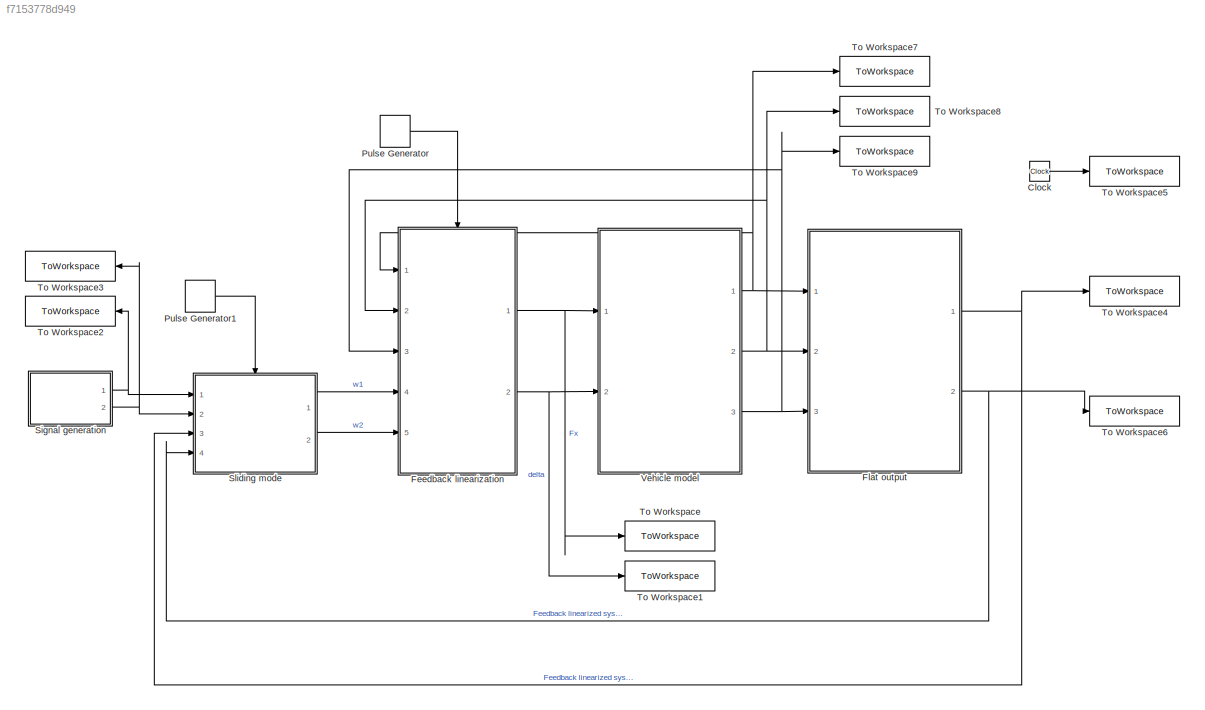
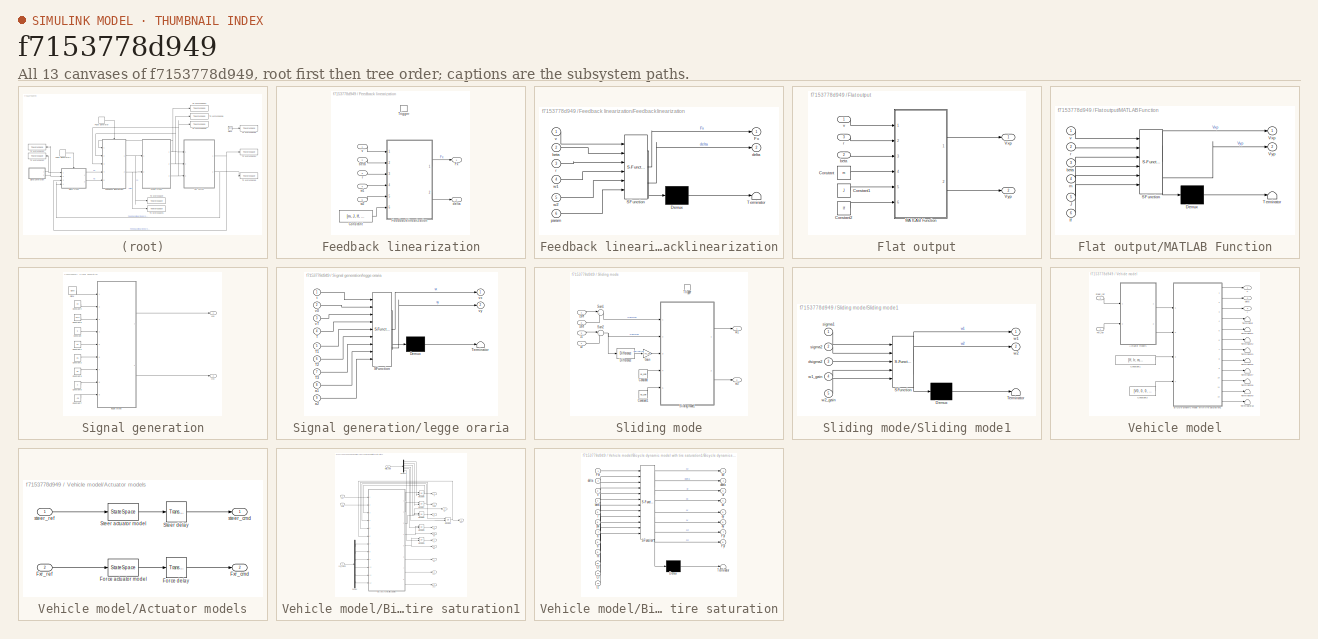
[diagram: thumbnail index - all 13 canvases of the model, root first then tree order]
MODEL slx_f7153778d949
KIND model
CONFIG AbsTol = auto
CONFIG EnableMultiTasking = off
CONFIG FixedStep = 1e-6
CONFIG MaxStep = auto
CONFIG MinStep = auto
CONFIG PostLoadFcn = clear all;\n\nlf  = 0.1368;\nlr  = 0.1232;\nm  = 1.9;\nmu = 0.385;\nCf = 50.13;\nCr = 122.05;\nJ = 0.029;\n\nV0 = 1;\n\nTs_cont = 0.001;\nw1_gain = 20;\nw2_gain = 100;
CONFIG RelTol = 1e-3
CONFIG SampleTimeConstraint = Unconstrained
CONFIG SolverName = VariableStepAuto
CONFIG StartTime = 0.0
CONFIG StopTime = 5
BLOCK [Clock] Clock
BLOCK [SubSystem] Feedback linearization
  Ports = [5, 2, 0, 1]
  RequestExecContextInheritance = off
  TreatAsAtomicUnit = on
BLOCK [Constant] Feedback linearization/Constant
  Value = [m, J, lf, lr, Cf, Cr]
BLOCK [SubSystem] Feedback linearization/Feedbacklinearization
  ErrorFcn = Stateflow.Translate.translate
  PermitHierarchicalResolution = ExplicitOnly
  Ports = [6, 2]
  RequestExecContextInheritance = off
  SFBlockType = MATLAB Function
  TreatAsAtomicUnit = on
BLOCK [Demux] Feedback linearization/Feedbacklinearization/ Demux 
  Outputs = 1
  Ports = [1, 1]
BLOCK [S-Function] Feedback linearization/Feedbacklinearization/ SFunction 
  EnableBusSupport = on
  FunctionName = sf_sfun
  PortCounts = [6 3]
  Ports = [6, 3]
  SFcnIsStateOwnerBlock = off
  SFunctionDeploymentMode = off
  Tag = Stateflow S-Function 2
BLOCK [Terminator] Feedback linearization/Feedbacklinearization/ Terminator 
BLOCK [Outport] Feedback linearization/Feedbacklinearization/Fx
BLOCK [Inport] Feedback linearization/Feedbacklinearization/beta
  Port = 2
BLOCK [Outport] Feedback linearization/Feedbacklinearization/delta
  Port = 2
BLOCK [Inport] Feedback linearization/Feedbacklinearization/param
  Port = 6
BLOCK [Inport] Feedback linearization/Feedbacklinearization/r
  Port = 3
BLOCK [Inport] Feedback linearization/Feedbacklinearization/v
BLOCK [Inport] Feedback linearization/Feedbacklinearization/w1
  Port = 4
BLOCK [Inport] Feedback linearization/Feedbacklinearization/w2
  Port = 5
BLOCK [Outport] Feedback linearization/Fx
BLOCK [TriggerPort] Feedback linearization/Trigger
  Ports = []
  StatesWhenEnabling = held
  VariantControl = (inherit)
BLOCK [Inport] Feedback linearization/beta
  Port = 2
BLOCK [Outport] Feedback linearization/delta
  Port = 2
BLOCK [Inport] Feedback linearization/r
  Port = 3
BLOCK [Inport] Feedback linearization/v
BLOCK [Inport] Feedback linearization/w1
  Port = 4
BLOCK [Inport] Feedback linearization/w2
  Port = 5
BLOCK [SubSystem] Flat output
  Ports = [3, 2]
  RequestExecContextInheritance = off
BLOCK [Constant] Flat output/Constant
  Value = m
BLOCK [Constant] Flat output/Constant1
  Value = J
BLOCK [Constant] Flat output/Constant2
  Value = lf
BLOCK [SubSystem] Flat output/MATLAB Function
  ErrorFcn = Stateflow.Translate.translate
  PermitHierarchicalResolution = ExplicitOnly
  Ports = [6, 2]
  RequestExecContextInheritance = off
  SFBlockType = MATLAB Function
  TreatAsAtomicUnit = on
BLOCK [Demux] Flat output/MATLAB Function/ Demux 
  Outputs = 1
  Ports = [1, 1]
BLOCK [S-Function] Flat output/MATLAB Function/ SFunction 
  EnableBusSupport = on
  FunctionName = sf_sfun
  PortCounts = [6 3]
  Ports = [6, 3]
  SFcnIsStateOwnerBlock = off
  SFunctionDeploymentMode = off
  Tag = Stateflow S-Function 5
BLOCK [Terminator] Flat output/MATLAB Function/ Terminator 
BLOCK [Inport] Flat output/MATLAB Function/J
  Port = 5
BLOCK [Outport] Flat output/MATLAB Function/Vxp
BLOCK [Outport] Flat output/MATLAB Function/Vyp
  Port = 2
BLOCK [Inport] Flat output/MATLAB Function/beta
  Port = 3
BLOCK [Inport] Flat output/MATLAB Function/lf
  Port = 6
BLOCK [Inport] Flat output/MATLAB Function/m
  Port = 4
BLOCK [Inport] Flat output/MATLAB Function/r
  Port = 2
BLOCK [Inport] Flat output/MATLAB Function/v
BLOCK [Outport] Flat output/Vxp
BLOCK [Outport] Flat output/Vyp
  Port = 2
BLOCK [Inport] Flat output/beta
  Port = 2
BLOCK [Inport] Flat output/r
  Port = 3
BLOCK [Inport] Flat output/v
BLOCK [DiscretePulseGenerator] Pulse Generator
  Period = Ts_cont
  Ports = [0, 1]
  PulseType = Time based
  PulseWidth = 50
BLOCK [DiscretePulseGenerator] Pulse Generator1
  Period = Ts_cont
  Ports = [0, 1]
  PulseType = Time based
  PulseWidth = 50
BLOCK [SubSystem] Signal generation
  Ports = [0, 2]
  RequestExecContextInheritance = off
BLOCK [Clock] Signal generation/Clock
BLOCK [Constant] Signal generation/Constant
  Value = 5
BLOCK [Constant] Signal generation/Constant1
  Value = 1.5
BLOCK [Constant] Signal generation/Constant2
  Value = 2.5
BLOCK [Constant] Signal generation/Constant3
  Value = 3.5
BLOCK [Constant] Signal generation/Constant4
  Value = V0
BLOCK [Constant] Signal generation/Constant5
  Value = V0+2
BLOCK [Constant] Signal generation/Constant6
  Value = 2
BLOCK [Constant] Signal generation/Constant7
  Value = -2.5
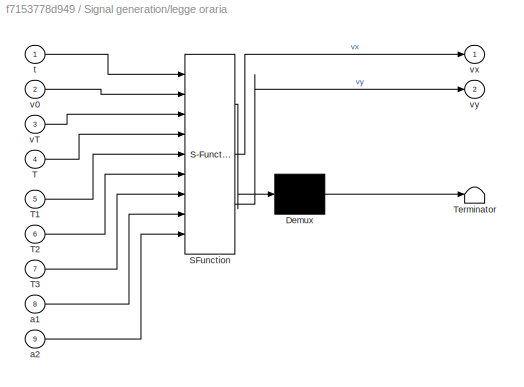
BLOCK [SubSystem] Signal generation/legge oraria
  ErrorFcn = Stateflow.Translate.translate
  PermitHierarchicalResolution = ExplicitOnly
  Ports = [9, 2]
  RequestExecContextInheritance = off
  SFBlockType = MATLAB Function
  TreatAsAtomicUnit = on
BLOCK [Demux] Signal generation/legge oraria/ Demux 
  Outputs = 1
  Ports = [1, 1]
BLOCK [S-Function] Signal generation/legge oraria/ SFunction 
  EnableBusSupport = on
  FunctionName = sf_sfun
  PortCounts = [9 3]
  Ports = [9, 3]
  SFcnIsStateOwnerBlock = off
  SFunctionDeploymentMode = off
  Tag = Stateflow S-Function 3
BLOCK [Terminator] Signal generation/legge oraria/ Terminator 
BLOCK [Inport] Signal generation/legge oraria/T
  Port = 4
BLOCK [Inport] Signal generation/legge oraria/T1
  Port = 5
BLOCK [Inport] Signal generation/legge oraria/T2
  Port = 6
BLOCK [Inport] Signal generation/legge oraria/T3
  Port = 7
BLOCK [Inport] Signal generation/legge oraria/a1
  Port = 8
BLOCK [Inport] Signal generation/legge oraria/a2
  Port = 9
BLOCK [Inport] Signal generation/legge oraria/t
BLOCK [Inport] Signal generation/legge oraria/v0
  Port = 2
BLOCK [Inport] Signal generation/legge oraria/vT
  Port = 3
BLOCK [Outport] Signal generation/legge oraria/vx
BLOCK [Outport] Signal generation/legge oraria/vy
  Port = 2
BLOCK [Outport] Signal generation/vxp
BLOCK [Outport] Signal generation/vyp
  Port = 2
BLOCK [SubSystem] Sliding mode
  Ports = [4, 2, 0, 1]
  RequestExecContextInheritance = off
  TreatAsAtomicUnit = on
BLOCK [Constant] Sliding mode/Constant
  Value = w1_gain
BLOCK [Constant] Sliding mode/Constant1
  Value = w2_gain
BLOCK [Reference] Sliding mode/Difference  REF=simulink/Discrete/Difference
  Ports = [1, 1]
  SourceBlock = simulink/Discrete/Difference
  SourceProductBaseCode = SL
  SourceType = Difference
BLOCK [Gain] Sliding mode/Gain
  Gain = 1/Ts_SM
BLOCK [SubSystem] Sliding mode/Sliding mode1
  ErrorFcn = Stateflow.Translate.translate
  PermitHierarchicalResolution = ExplicitOnly
  Ports = [5, 2]
  RequestExecContextInheritance = off
  SFBlockType = MATLAB Function
  TreatAsAtomicUnit = on
BLOCK [Demux] Sliding mode/Sliding mode1/ Demux 
  Outputs = 1
  Ports = [1, 1]
BLOCK [S-Function] Sliding mode/Sliding mode1/ SFunction 
  EnableBusSupport = on
  FunctionName = sf_sfun
  PortCounts = [5 3]
  Ports = [5, 3]
  SFcnIsStateOwnerBlock = off
  SFunctionDeploymentMode = off
  Tag = Stateflow S-Function 4
BLOCK [Terminator] Sliding mode/Sliding mode1/ Terminator 
BLOCK [Inport] Sliding mode/Sliding mode1/dsigma2
  Port = 3
BLOCK [Inport] Sliding mode/Sliding mode1/sigma1
BLOCK [Inport] Sliding mode/Sliding mode1/sigma2
  Port = 2
BLOCK [Outport] Sliding mode/Sliding mode1/w1
BLOCK [Inport] Sliding mode/Sliding mode1/w1_gain
  Port = 4
BLOCK [Outport] Sliding mode/Sliding mode1/w2
  Port = 2
BLOCK [Inport] Sliding mode/Sliding mode1/w2_gain
  Port = 5
BLOCK [Sum] Sliding mode/Sum1
  Inputs = |+-
  Ports = [2, 1]
BLOCK [Sum] Sliding mode/Sum2
  Inputs = |+-
  Ports = [2, 1]
BLOCK [TriggerPort] Sliding mode/Trigger
  Ports = []
  StatesWhenEnabling = held
  VariantControl = (inherit)
BLOCK [Outport] Sliding mode/w1
BLOCK [Outport] Sliding mode/w2
  Port = 2
BLOCK [Inport] Sliding mode/z1
  Port = 3
BLOCK [Inport] Sliding mode/z1ref
BLOCK [Inport] Sliding mode/z2
  Port = 4
BLOCK [Inport] Sliding mode/z2ref
  Port = 2
BLOCK [ToWorkspace] To Workspace
  FixptAsFi = on
  MaxDataPoints = inf
  Ports = [1]
  SampleTime = 0.001
  Save2DSignal = 2-D array (concatenate along first dimension)
  VariableName = Fx
BLOCK [ToWorkspace] To Workspace1
  FixptAsFi = on
  MaxDataPoints = inf
  Ports = [1]
  SampleTime = 0.001
  Save2DSignal = 2-D array (concatenate along first dimension)
  VariableName = delta
BLOCK [ToWorkspace] To Workspace2
  FixptAsFi = on
  MaxDataPoints = inf
  Ports = [1]
  SampleTime = 0.001
  Save2DSignal = 2-D array (concatenate along first dimension)
  VariableName = Vxp_ref
BLOCK [ToWorkspace] To Workspace3
  FixptAsFi = on
  MaxDataPoints = inf
  Ports = [1]
  SampleTime = 0.001
  Save2DSignal = 2-D array (concatenate along first dimension)
  VariableName = Vyp_ref
BLOCK [ToWorkspace] To Workspace4
  FixptAsFi = on
  MaxDataPoints = inf
  Ports = [1]
  SampleTime = 0.001
  Save2DSignal = 2-D array (concatenate along first dimension)
  VariableName = Vxp
BLOCK [ToWorkspace] To Workspace5
  FixptAsFi = on
  MaxDataPoints = inf
  Ports = [1]
  SampleTime = 0.001
  Save2DSignal = 2-D array (concatenate along first dimension)
  VariableName = t
BLOCK [ToWorkspace] To Workspace6
  FixptAsFi = on
  MaxDataPoints = inf
  Ports = [1]
  SampleTime = 0.001
  Save2DSignal = 2-D array (concatenate along first dimension)
  VariableName = Vyp
BLOCK [ToWorkspace] To Workspace7
  FixptAsFi = on
  MaxDataPoints = inf
  Ports = [1]
  SampleTime = 0.001
  Save2DSignal = 2-D array (concatenate along first dimension)
  VariableName = v
BLOCK [ToWorkspace] To Workspace8
  FixptAsFi = on
  MaxDataPoints = inf
  Ports = [1]
  SampleTime = 0.001
  Save2DSignal = 2-D array (concatenate along first dimension)
  VariableName = beta
BLOCK [ToWorkspace] To Workspace9
  FixptAsFi = on
  MaxDataPoints = inf
  Ports = [1]
  SampleTime = 0.001
  Save2DSignal = 2-D array (concatenate along first dimension)
  VariableName = r
BLOCK [SubSystem] Vehicle model
  Ports = [2, 3]
  RequestExecContextInheritance = off
BLOCK [SubSystem] Vehicle model/Actuator models
  Commented = through
  Ports = [2, 2]
  RequestExecContextInheritance = off
BLOCK [StateSpace] Vehicle model/Actuator models/Force actuator model
  A = [0, 1; -wn_force^2, -2*csi_force*wn_force]
  B = [0; mu_force*wn_force^2]
  C = [1, 0]
  D = 0
  InitialCondition = [force_initial, 0]
  Ports = [1, 1]
BLOCK [TransportDelay] Vehicle model/Actuator models/Force delay
  DelayTime = tau_force
  InitialOutput = force_initial
  Ports = [1, 1]
BLOCK [Outport] Vehicle model/Actuator models/Fxr_cmd
  Port = 2
BLOCK [Inport] Vehicle model/Actuator models/Fxr_ref
  Port = 2
BLOCK [StateSpace] Vehicle model/Actuator models/Steer actuator model
  A = [0, 1; -wn_steer^2, -2*csi_steer*wn_steer]
  B = [0; mu_steer*wn_steer^2]
  C = [1, 0]
  D = 0
  InitialCondition = [steer_initial, 0]
  Ports = [1, 1]
BLOCK [TransportDelay] Vehicle model/Actuator models/Steer delay
  DelayTime = tau_steer
  InitialOutput = steer_initial
  Ports = [1, 1]
BLOCK [Outport] Vehicle model/Actuator models/steer_cmd
BLOCK [Inport] Vehicle model/Actuator models/steer_ref
BLOCK [SubSystem] Vehicle model/Bicycle dynamic model with tire saturation1
  Ports = [4, 12]
  RequestExecContextInheritance = off
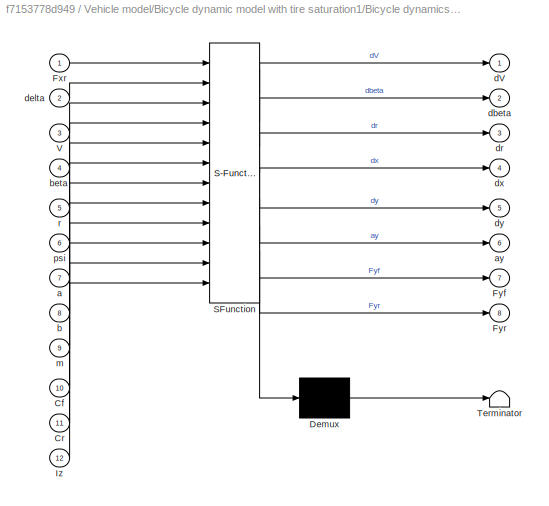
BLOCK [SubSystem] Vehicle model/Bicycle dynamic model with tire saturation1/Bicycle dynamics tire saturation
  ErrorFcn = Stateflow.Translate.translate
  PermitHierarchicalResolution = ExplicitOnly
  Ports = [12, 8]
  RequestExecContextInheritance = off
  SFBlockType = MATLAB Function
  TreatAsAtomicUnit = on
BLOCK [Demux] Vehicle model/Bicycle dynamic model with tire saturation1/Bicycle dynamics tire saturation/ Demux 
  Outputs = 1
  Ports = [1, 1]
BLOCK [S-Function] Vehicle model/Bicycle dynamic model with tire saturation1/Bicycle dynamics tire saturation/ SFunction 
  EnableBusSupport = on
  FunctionName = sf_sfun
  PortCounts = [12 9]
  Ports = [12, 9]
  SFcnIsStateOwnerBlock = off
  SFunctionDeploymentMode = off
  Tag = Stateflow S-Function 1
BLOCK [Terminator] Vehicle model/Bicycle dynamic model with tire saturation1/Bicycle dynamics tire saturation/ Terminator 
BLOCK [Inport] Vehicle model/Bicycle dynamic model with tire saturation1/Bicycle dynamics tire saturation/Cf
  Port = 10
BLOCK [Inport] Vehicle model/Bicycle dynamic model with tire saturation1/Bicycle dynamics tire saturation/Cr
  Port = 11
BLOCK [Inport] Vehicle model/Bicycle dynamic model with tire saturation1/Bicycle dynamics tire saturation/Fxr
BLOCK [Outport] Vehicle model/Bicycle dynamic model with tire saturation1/Bicycle dynamics tire saturation/Fyf
  Port = 7
BLOCK [Outport] Vehicle model/Bicycle dynamic model with tire saturation1/Bicycle dynamics tire saturation/Fyr
  Port = 8
BLOCK [Inport] Vehicle model/Bicycle dynamic model with tire saturation1/Bicycle dynamics tire saturation/Iz
  Port = 12
BLOCK [Inport] Vehicle model/Bicycle dynamic model with tire saturation1/Bicycle dynamics tire saturation/V
  Port = 3
BLOCK [Inport] Vehicle model/Bicycle dynamic model with tire saturation1/Bicycle dynamics tire saturation/a
  Port = 7
BLOCK [Outport] Vehicle model/Bicycle dynamic model with tire saturation1/Bicycle dynamics tire saturation/ay
  Port = 6
BLOCK [Inport] Vehicle model/Bicycle dynamic model with tire saturation1/Bicycle dynamics tire saturation/b
  Port = 8
BLOCK [Inport] Vehicle model/Bicycle dynamic model with tire saturation1/Bicycle dynamics tire saturation/beta
  Port = 4
BLOCK [Outport] Vehicle model/Bicycle dynamic model with tire saturation1/Bicycle dynamics tire saturation/dV
BLOCK [Outport] Vehicle model/Bicycle dynamic model with tire saturation1/Bicycle dynamics tire saturation/dbeta
  Port = 2
BLOCK [Inport] Vehicle model/Bicycle dynamic model with tire saturation1/Bicycle dynamics tire saturation/delta
  Port = 2
BLOCK [Outport] Vehicle model/Bicycle dynamic model with tire saturation1/Bicycle dynamics tire saturation/dr
  Port = 3
  VectorParamsAs1DForOutWhenUnconnected = off
BLOCK [Outport] Vehicle model/Bicycle dynamic model with tire saturation1/Bicycle dynamics tire saturation/dx
  Port = 4
BLOCK [Outport] Vehicle model/Bicycle dynamic model with tire saturation1/Bicycle dynamics tire saturation/dy
  Port = 5
BLOCK [Inport] Vehicle model/Bicycle dynamic model with tire saturation1/Bicycle dynamics tire saturation/m
  Port = 9
BLOCK [Inport] Vehicle model/Bicycle dynamic model with tire saturation1/Bicycle dynamics tire saturation/psi
  Port = 6
BLOCK [Inport] Vehicle model/Bicycle dynamic model with tire saturation1/Bicycle dynamics tire saturation/r
  Port = 5
BLOCK [Demux] Vehicle model/Bicycle dynamic model with tire saturation1/Demux
  Outputs = 6
  Ports = [1, 6]
BLOCK [Demux] Vehicle model/Bicycle dynamic model with tire saturation1/Demux2
  Outputs = 6
  Ports = [1, 6]
BLOCK [Inport] Vehicle model/Bicycle dynamic model with tire saturation1/Fxr
  Port = 2
BLOCK [Outport] Vehicle model/Bicycle dynamic model with tire saturation1/Fyf
  Port = 8
BLOCK [Outport] Vehicle model/Bicycle dynamic model with tire saturation1/Fyr
  Port = 9
BLOCK [Integrator] Vehicle model/Bicycle dynamic model with tire saturation1/Integrator
  InitialConditionSource = external
  Ports = [2, 1]
BLOCK [Integrator] Vehicle model/Bicycle dynamic model with tire saturation1/Integrator1
  InitialConditionSource = external
  Ports = [2, 1]
BLOCK [Integrator] Vehicle model/Bicycle dynamic model with tire saturation1/Integrator2
  InitialConditionSource = external
  Ports = [2, 1]
BLOCK [Integrator] Vehicle model/Bicycle dynamic model with tire saturation1/Integrator3
  InitialConditionSource = external
  Ports = [2, 1]
BLOCK [Integrator] Vehicle model/Bicycle dynamic model with tire saturation1/Integrator4
  InitialConditionSource = external
  Ports = [2, 1]
BLOCK [Integrator] Vehicle model/Bicycle dynamic model with tire saturation1/Integrator5
  InitialConditionSource = external
  Ports = [2, 1]
BLOCK [Outport] Vehicle model/Bicycle dynamic model with tire saturation1/V
BLOCK [Outport] Vehicle model/Bicycle dynamic model with tire saturation1/ay
  Port = 7
BLOCK [Outport] Vehicle model/Bicycle dynamic model with tire saturation1/beta
  Port = 2
BLOCK [Inport] Vehicle model/Bicycle dynamic model with tire saturation1/car_param
  Port = 3
BLOCK [Inport] Vehicle model/Bicycle dynamic model with tire saturation1/delta
BLOCK [Outport] Vehicle model/Bicycle dynamic model with tire saturation1/dr
  Port = 12
BLOCK [Outport] Vehicle model/Bicycle dynamic model with tire saturation1/dx
  Port = 10
BLOCK [Outport] Vehicle model/Bicycle dynamic model with tire saturation1/dy
  Port = 11
BLOCK [Inport] Vehicle model/Bicycle dynamic model with tire saturation1/initial_state 
  Port = 4
BLOCK [Outport] Vehicle model/Bicycle dynamic model with tire saturation1/psi
  Port = 6
BLOCK [Outport] Vehicle model/Bicycle dynamic model with tire saturation1/r
  Port = 3
BLOCK [Outport] Vehicle model/Bicycle dynamic model with tire saturation1/x
  Port = 4
BLOCK [Outport] Vehicle model/Bicycle dynamic model with tire saturation1/y
  Port = 5
BLOCK [Constant] Vehicle model/Constant1
  Value = [lf, lr, m, Cf, Cr, J]
BLOCK [Constant] Vehicle model/Constant3
  Value = [V0, 0, 0, 0, 0, 0]
BLOCK [Inport] Vehicle model/Fxr_ref
BLOCK [Terminator] Vehicle model/Terminator
BLOCK [Terminator] Vehicle model/Terminator1
BLOCK [Terminator] Vehicle model/Terminator10
BLOCK [Terminator] Vehicle model/Terminator2
BLOCK [Terminator] Vehicle model/Terminator3
BLOCK [Terminator] Vehicle model/Terminator6
BLOCK [Terminator] Vehicle model/Terminator7
BLOCK [Terminator] Vehicle model/Terminator8
BLOCK [Terminator] Vehicle model/Terminator9
BLOCK [Outport] Vehicle model/V
BLOCK [Outport] Vehicle model/beta
  Port = 2
BLOCK [Outport] Vehicle model/r
  Port = 3
BLOCK [Inport] Vehicle model/steer_ref
  Port = 2
LINE Clock:1 -> To Workspace5:1
LINE Feedback linearization/Constant:1 -> Feedback linearization/Feedbacklinearization:6
LINE Feedback linearization/Feedbacklinearization:1 -> Feedback linearization/Fx:1
LINE Feedback linearization/Feedbacklinearization:2 -> Feedback linearization/delta:1
LINE Feedback linearization/beta:1 -> Feedback linearization/Feedbacklinearization:2
LINE Feedback linearization/r:1 -> Feedback linearization/Feedbacklinearization:3
LINE Feedback linearization/v:1 -> Feedback linearization/Feedbacklinearization:1
LINE Feedback linearization/w1:1 -> Feedback linearization/Feedbacklinearization:4
LINE Feedback linearization/w2:1 -> Feedback linearization/Feedbacklinearization:5
NET Feedback linearization:1 -> To Workspace:1, Vehicle model:1
NET Feedback linearization:2 -> To Workspace1:1, Vehicle model:2
LINE Flat output/Constant1:1 -> Flat output/MATLAB Function:5
LINE Flat output/Constant2:1 -> Flat output/MATLAB Function:6
LINE Flat output/Constant:1 -> Flat output/MATLAB Function:4
LINE Flat output/MATLAB Function:1 -> Flat output/Vxp:1
LINE Flat output/MATLAB Function:2 -> Flat output/Vyp:1
LINE Flat output/beta:1 -> Flat output/MATLAB Function:3
LINE Flat output/r:1 -> Flat output/MATLAB Function:2
LINE Flat output/v:1 -> Flat output/MATLAB Function:1
NET Flat output:1 -> Sliding mode:3, To Workspace4:1
NET Flat output:2 -> Sliding mode:4, To Workspace6:1
LINE Pulse Generator1:1 -> Sliding mode:trigger
LINE Pulse Generator:1 -> Feedback linearization:trigger
LINE Signal generation/Clock:1 -> Signal generation/legge oraria:1
LINE Signal generation/Constant1:1 -> Signal generation/legge oraria:5
LINE Signal generation/Constant2:1 -> Signal generation/legge oraria:6
LINE Signal generation/Constant3:1 -> Signal generation/legge oraria:7
LINE Signal generation/Constant4:1 -> Signal generation/legge oraria:2
LINE Signal generation/Constant5:1 -> Signal generation/legge oraria:3
LINE Signal generation/Constant6:1 -> Signal generation/legge oraria:8
LINE Signal generation/Constant7:1 -> Signal generation/legge oraria:9
LINE Signal generation/Constant:1 -> Signal generation/legge oraria:4
LINE Signal generation/legge oraria:1 -> Signal generation/vxp:1
LINE Signal generation/legge oraria:2 -> Signal generation/vyp:1
NET Signal generation:1 -> Sliding mode:1, To Workspace2:1
NET Signal generation:2 -> Sliding mode:2, To Workspace3:1
LINE Sliding mode/Constant1:1 -> Sliding mode/Sliding mode1:5
LINE Sliding mode/Constant:1 -> Sliding mode/Sliding mode1:4
LINE Sliding mode/Difference:1 -> Sliding mode/Gain:1
LINE Sliding mode/Gain:1 -> Sliding mode/Sliding mode1:3
LINE Sliding mode/Sliding mode1:1 -> Sliding mode/w1:1
LINE Sliding mode/Sliding mode1:2 -> Sliding mode/w2:1
LINE Sliding mode/Sum1:1 -> Sliding mode/Sliding mode1:1
NET Sliding mode/Sum2:1 -> Sliding mode/Difference:1, Sliding mode/Sliding mode1:2
LINE Sliding mode/z1:1 -> Sliding mode/Sum2:1
LINE Sliding mode/z1ref:1 -> Sliding mode/Sum1:1
LINE Sliding mode/z2:1 -> Sliding mode/Sum2:2
LINE Sliding mode/z2ref:1 -> Sliding mode/Sum1:2
LINE Sliding mode:1 -> Feedback linearization:4
LINE Sliding mode:2 -> Feedback linearization:5
LINE Vehicle model/Actuator models/Force actuator model:1 -> Vehicle model/Actuator models/Force delay:1
LINE Vehicle model/Actuator models/Force delay:1 -> Vehicle model/Actuator models/Fxr_cmd:1
LINE Vehicle model/Actuator models/Fxr_ref:1 -> Vehicle model/Actuator models/Force actuator model:1
LINE Vehicle model/Actuator models/Steer actuator model:1 -> Vehicle model/Actuator models/Steer delay:1
LINE Vehicle model/Actuator models/Steer delay:1 -> Vehicle model/Actuator models/steer_cmd:1
LINE Vehicle model/Actuator models/steer_ref:1 -> Vehicle model/Actuator models/Steer actuator model:1
LINE Vehicle model/Actuator models:1 -> Vehicle model/Bicycle dynamic model with tire saturation1:1
LINE Vehicle model/Actuator models:2 -> Vehicle model/Bicycle dynamic model with tire saturation1:2
LINE Vehicle model/Bicycle dynamic model with tire saturation1/Bicycle dynamics tire saturation:1 -> Vehicle model/Bicycle dynamic model with tire saturation1/Integrator5:1
LINE Vehicle model/Bicycle dynamic model with tire saturation1/Bicycle dynamics tire saturation:2 -> Vehicle model/Bicycle dynamic model with tire saturation1/Integrator:1
NET Vehicle model/Bicycle dynamic model with tire saturation1/Bicycle dynamics tire saturation:3 -> Vehicle model/Bicycle dynamic model with tire saturation1/Integrator1:1, Vehicle model/Bicycle dynamic model with tire saturation1/dr:1
NET Vehicle model/Bicycle dynamic model with tire saturation1/Bicycle dynamics tire saturation:4 -> Vehicle model/Bicycle dynamic model with tire saturation1/Integrator3:1, Vehicle model/Bicycle dynamic model with tire saturation1/dx:1
NET Vehicle model/Bicycle dynamic model with tire saturation1/Bicycle dynamics tire saturation:5 -> Vehicle model/Bicycle dynamic model with tire saturation1/Integrator4:1, Vehicle model/Bicycle dynamic model with tire saturation1/dy:1
LINE Vehicle model/Bicycle dynamic model with tire saturation1/Bicycle dynamics tire saturation:6 -> Vehicle model/Bicycle dynamic model with tire saturation1/ay:1
LINE Vehicle model/Bicycle dynamic model with tire saturation1/Bicycle dynamics tire saturation:7 -> Vehicle model/Bicycle dynamic model with tire saturation1/Fyf:1
LINE Vehicle model/Bicycle dynamic model with tire saturation1/Bicycle dynamics tire saturation:8 -> Vehicle model/Bicycle dynamic model with tire saturation1/Fyr:1
LINE Vehicle model/Bicycle dynamic model with tire saturation1/Demux2:1 -> Vehicle model/Bicycle dynamic model with tire saturation1/Integrator5:2
LINE Vehicle model/Bicycle dynamic model with tire saturation1/Demux2:2 -> Vehicle model/Bicycle dynamic model with tire saturation1/Integrator:2
LINE Vehicle model/Bicycle dynamic model with tire saturation1/Demux2:3 -> Vehicle model/Bicycle dynamic model with tire saturation1/Integrator1:2
LINE Vehicle model/Bicycle dynamic model with tire saturation1/Demux2:4 -> Vehicle model/Bicycle dynamic model with tire saturation1/Integrator2:2
LINE Vehicle model/Bicycle dynamic model with tire saturation1/Demux2:5 -> Vehicle model/Bicycle dynamic model with tire saturation1/Integrator3:2
LINE Vehicle model/Bicycle dynamic model with tire saturation1/Demux2:6 -> Vehicle model/Bicycle dynamic model with tire saturation1/Integrator4:2
LINE Vehicle model/Bicycle dynamic model with tire saturation1/Demux:1 -> Vehicle model/Bicycle dynamic model with tire saturation1/Bicycle dynamics tire saturation:7
LINE Vehicle model/Bicycle dynamic model with tire saturation1/Demux:2 -> Vehicle model/Bicycle dynamic model with tire saturation1/Bicycle dynamics tire saturation:8
LINE Vehicle model/Bicycle dynamic model with tire saturation1/Demux:3 -> Vehicle model/Bicycle dynamic model with tire saturation1/Bicycle dynamics tire saturation:9
LINE Vehicle model/Bicycle dynamic model with tire saturation1/Demux:4 -> Vehicle model/Bicycle dynamic model with tire saturation1/Bicycle dynamics tire saturation:10
LINE Vehicle model/Bicycle dynamic model with tire saturation1/Demux:5 -> Vehicle model/Bicycle dynamic model with tire saturation1/Bicycle dynamics tire saturation:11
LINE Vehicle model/Bicycle dynamic model with tire saturation1/Demux:6 -> Vehicle model/Bicycle dynamic model with tire saturation1/Bicycle dynamics tire saturation:12
LINE Vehicle model/Bicycle dynamic model with tire saturation1/Fxr:1 -> Vehicle model/Bicycle dynamic model with tire saturation1/Bicycle dynamics tire saturation:1
NET Vehicle model/Bicycle dynamic model with tire saturation1/Integrator1:1 -> Vehicle model/Bicycle dynamic model with tire saturation1/Bicycle dynamics tire saturation:5, Vehicle model/Bicycle dynamic model with tire saturation1/Integrator2:1, Vehicle model/Bicycle dynamic model with tire saturation1/r:1
NET Vehicle model/Bicycle dynamic model with tire saturation1/Integrator2:1 -> Vehicle model/Bicycle dynamic model with tire saturation1/Bicycle dynamics tire saturation:6, Vehicle model/Bicycle dynamic model with tire saturation1/psi:1
LINE Vehicle model/Bicycle dynamic model with tire saturation1/Integrator3:1 -> Vehicle model/Bicycle dynamic model with tire saturation1/x:1
LINE Vehicle model/Bicycle dynamic model with tire saturation1/Integrator4:1 -> Vehicle model/Bicycle dynamic model with tire saturation1/y:1
NET Vehicle model/Bicycle dynamic model with tire saturation1/Integrator5:1 -> Vehicle model/Bicycle dynamic model with tire saturation1/Bicycle dynamics tire saturation:3, Vehicle model/Bicycle dynamic model with tire saturation1/V:1
NET Vehicle model/Bicycle dynamic model with tire saturation1/Integrator:1 -> Vehicle model/Bicycle dynamic model with tire saturation1/Bicycle dynamics tire saturation:4, Vehicle model/Bicycle dynamic model with tire saturation1/beta:1
LINE Vehicle model/Bicycle dynamic model with tire saturation1/car_param:1 -> Vehicle model/Bicycle dynamic model with tire saturation1/Demux:1
LINE Vehicle model/Bicycle dynamic model with tire saturation1/delta:1 -> Vehicle model/Bicycle dynamic model with tire saturation1/Bicycle dynamics tire saturation:2
LINE Vehicle model/Bicycle dynamic model with tire saturation1/initial_state :1 -> Vehicle model/Bicycle dynamic model with tire saturation1/Demux2:1
LINE Vehicle model/Bicycle dynamic model with tire saturation1:1 -> Vehicle model/V:1
LINE Vehicle model/Bicycle dynamic model with tire saturation1:10 -> Vehicle model/Terminator8:1
LINE Vehicle model/Bicycle dynamic model with tire saturation1:11 -> Vehicle model/Terminator9:1
LINE Vehicle model/Bicycle dynamic model with tire saturation1:12 -> Vehicle model/Terminator10:1
LINE Vehicle model/Bicycle dynamic model with tire saturation1:2 -> Vehicle model/beta:1
LINE Vehicle model/Bicycle dynamic model with tire saturation1:3 -> Vehicle model/r:1
LINE Vehicle model/Bicycle dynamic model with tire saturation1:4 -> Vehicle model/Terminator:1
LINE Vehicle model/Bicycle dynamic model with tire saturation1:5 -> Vehicle model/Terminator1:1
LINE Vehicle model/Bicycle dynamic model with tire saturation1:6 -> Vehicle model/Terminator2:1
LINE Vehicle model/Bicycle dynamic model with tire saturation1:7 -> Vehicle model/Terminator3:1
LINE Vehicle model/Bicycle dynamic model with tire saturation1:8 -> Vehicle model/Terminator6:1
LINE Vehicle model/Bicycle dynamic model with tire saturation1:9 -> Vehicle model/Terminator7:1
LINE Vehicle model/Constant1:1 -> Vehicle model/Bicycle dynamic model with tire saturation1:3
LINE Vehicle model/Constant3:1 -> Vehicle model/Bicycle dynamic model with tire saturation1:4
LINE Vehicle model/Fxr_ref:1 -> Vehicle model/Actuator models:2
LINE Vehicle model/steer_ref:1 -> Vehicle model/Actuator models:1
NET Vehicle model:1 -> Feedback linearization:1, Flat output:1, To Workspace7:1
NET Vehicle model:2 -> Feedback linearization:2, Flat output:2, To Workspace8:1
NET Vehicle model:3 -> Feedback linearization:3, Flat output:3, To Workspace9:1
note: NET lines group one-source signal fan-out (src -> all destinations, sorted); 1:1 wires keep LINE
CHART Flat output/MATLAB Function states=1 transitions=1
  STATE_LABEL 'eML_blk_kernel()'
  STATE_LABEL 'SCRIPT:\nfunction [Vxp,Vyp] = z_tranform(v,r,beta,m,J,lf)\n\nVxp = v*cos(beta);\nVyp = v*sin(beta)-J/(m*lf)*r;\n'
CHART Vehicle model/Bicycle dynamic
model with tire saturation1/Bicycle dynamics tire saturation states=1 transitions=1
  STATE_LABEL 'eML_blk_kernel()'
  STATE_LABEL 'SCRIPT:\nfunction [dV,dbeta,dr,dx,dy,ay,Fyf,Fyr]  = bicycle_dynamics(Fxr, delta, V, beta, r, psi, a, b, m, Cf, Cr, Iz)\n\nif (abs(V*cos(beta))<=0.01)\n    Fyf = 0;\n    Fyr = 0;\nelse\n    Fyf = -Cf*((V*sin(beta)+a*r)/(V*cos(beta))-delta);\n    Fyr = -Cr*(V*sin(beta)-b*r)/(V*cos(beta));\nend\n\ndV    = (Fyf*(sin(beta)-cos(beta)*delta)+Fyr*sin(beta)+Fxr*cos(beta))/m;\ndbeta = (Fyf*(cos(beta)+sin(beta)*delta)+F...<+293ch>'
CHART Feedback linearization/Feedbacklinearization states=1 transitions=1
  STATE_LABEL 'eML_blk_kernel()'
  STATE_LABEL 'SCRIPT:\nfunction [Fx, delta] = fblin(v, beta, r, w1, w2, param)\nm  = param(1);\nJ  = param(2);\nlf = param(3);\nlr = param(4);\nCf = param(5);\nCr = param(6);\n\nl = (lf+lr)/(m*lf);\nF = -(lf*v)/J*cos(beta)+(Cr*l)./(J*m*v*cos(beta))*(lf*lr*m-J);\nR = (lr*v)/J*cos(beta)-(Cr*l)./(J*m*v*cos(beta))*(J+m*lr^2);\nH = -r*w1+(Cr*l)./(v*cos(beta)).^2*(v*w1*sin(beta)-lr*r*w1-v^2*r*sin(beta)^2+r*v^2);\n \nFry   = Cr*(lr...<+203ch>'
CHART Signal generation/legge oraria states=1 transitions=1
  STATE_LABEL 'eML_blk_kernel()'
  STATE_LABEL 'SCRIPT:\nfunction [vx,vy] = trajectory(t,v0,vT,T,T1,T2,T3,a1,a2)\n\nvx = v0+(3*t^2*T-2*t^3)/(T^3)*(vT-v0);\n\nif (t<=T1)\n    vy = 0;\nelseif (t<=T2)\n    vy = -a1*((t-T1)^3)*((T2-T1)-(t-T1))^3/(T2-T1)^6;\nelseif (t<=T3)\n    vy = -a2*((t-T2)^3)*((T3-T2)-(t-T2))^3/(T3-T2)^6;\nelse\n    vy = 0;\nend'
CHART Sliding mode/Sliding mode1 states=1 transitions=1
  STATE_LABEL 'eML_blk_kernel()'
  STATE_LABEL 'SCRIPT:\nfunction [w1,w2] = sliding_mode(sigma1,sigma2,dsigma2,w1_gain,w2_gain)\n\nw1 = w1_gain*sign(sigma1);\nw2 = w2_gain*sign(sigma2+dsigma2*abs(dsigma2)/(2*w2_gain));\n'
CHART  states=0 transitions=0
CHART  states=0 transitions=0
CHART  states=0 transitions=0
CHART  states=0 transitions=0
CHART  states=0 transitions=0
